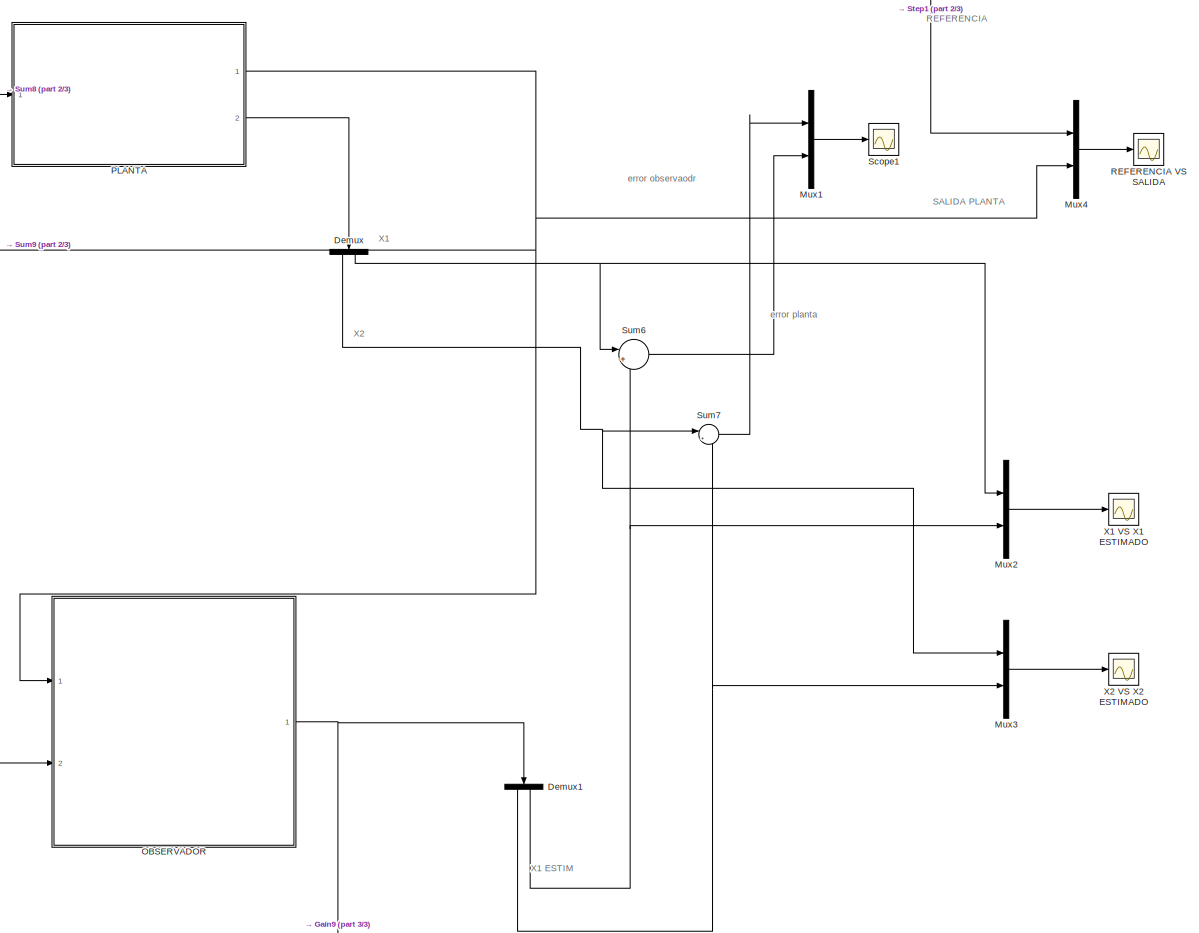
[diagram: root canvas - part 1/3, right side, full height]
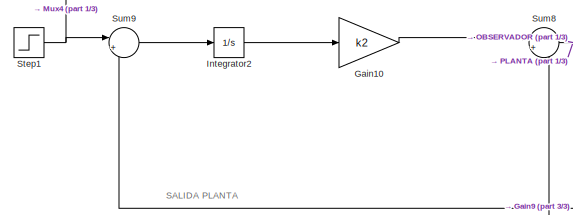
[diagram: root canvas - part 2/3, top left region]
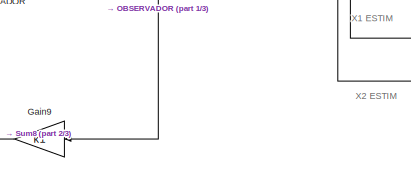
[diagram: root canvas - part 3/3, bottom center region]
MODEL slx_547552ccd16b
KIND model
CONFIG AbsTol = auto
CONFIG FixedStep = 1e-6
CONFIG MaxStep = auto
CONFIG MinStep = auto
CONFIG RelTol = 1e-3
CONFIG SampleTimeConstraint = Unconstrained
CONFIG Solver = ode45
CONFIG SolverMode = Auto
CONFIG SolverName = ode45
CONFIG StartTime = 0.0
CONFIG StopTime = 10
BLOCK [Demux] Demux
  DisplayOption = bar
  Outputs = 2
  Ports = [1, 2]
BLOCK [Demux] Demux1
  DisplayOption = bar
  Outputs = 2
  Ports = [1, 2]
BLOCK [Gain] Gain10
  Gain = k2
  OutDataTypeStr = Inherit: Inherit via internal rule
  ParamDataTypeStr = Inherit: Inherit via internal rule
  SaturateOnIntegerOverflow = off
BLOCK [Gain] Gain9
  Gain = k1
  Multiplication = Matrix(K*u)
  OutDataTypeStr = Inherit: Inherit via internal rule
  ParamDataTypeStr = Inherit: Inherit via internal rule
  SaturateOnIntegerOverflow = off
BLOCK [Integrator] Integrator2
  Ports = [1, 1]
BLOCK [Mux] Mux1
  DisplayOption = bar
  Inputs = 2
  Ports = [2, 1]
BLOCK [Mux] Mux2
  DisplayOption = bar
  Inputs = 2
  Ports = [2, 1]
BLOCK [Mux] Mux3
  DisplayOption = bar
  Inputs = 2
  Ports = [2, 1]
BLOCK [Mux] Mux4
  DisplayOption = bar
  Inputs = 2
  Ports = [2, 1]
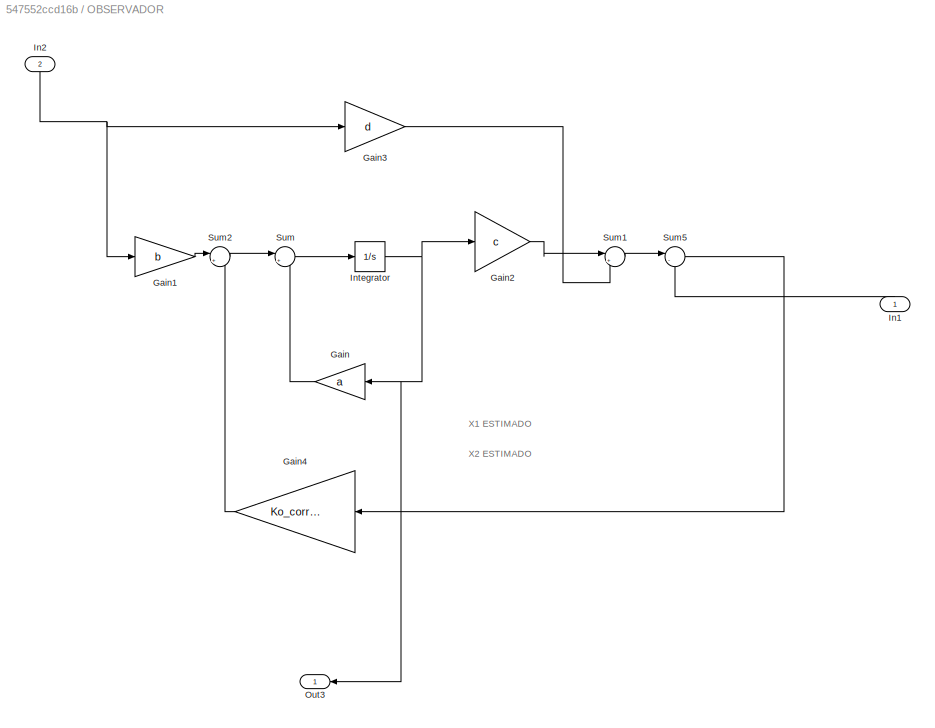
BLOCK [SubSystem] OBSERVADOR
  Ports = [2, 1]
  RequestExecContextInheritance = off
BLOCK [Gain] OBSERVADOR/Gain
  Gain = a
  Multiplication = Matrix(K*u)
  OutDataTypeStr = Inherit: Inherit via internal rule
  ParamDataTypeStr = Inherit: Inherit via internal rule
  SaturateOnIntegerOverflow = off
BLOCK [Gain] OBSERVADOR/Gain1
  Gain = b
  Multiplication = Matrix(K*u)
  OutDataTypeStr = Inherit: Inherit via internal rule
  ParamDataTypeStr = Inherit: Inherit via internal rule
  SaturateOnIntegerOverflow = off
BLOCK [Gain] OBSERVADOR/Gain2
  Gain = c
  Multiplication = Matrix(K*u)
  OutDataTypeStr = Inherit: Inherit via internal rule
  ParamDataTypeStr = Inherit: Inherit via internal rule
  SaturateOnIntegerOverflow = off
BLOCK [Gain] OBSERVADOR/Gain3
  Gain = d
  Multiplication = Matrix(K*u)
  OutDataTypeStr = Inherit: Inherit via internal rule
  ParamDataTypeStr = Inherit: Inherit via internal rule
  SaturateOnIntegerOverflow = off
BLOCK [Gain] OBSERVADOR/Gain4
  Gain = Ko_corr_2
  Multiplication = Matrix(K*u)
  OutDataTypeStr = Inherit: Inherit via internal rule
  ParamDataTypeStr = Inherit: Inherit via internal rule
  SaturateOnIntegerOverflow = off
BLOCK [Inport] OBSERVADOR/In1
  IconDisplay = Port number
BLOCK [Inport] OBSERVADOR/In2
  IconDisplay = Port number
  Port = 2
BLOCK [Integrator] OBSERVADOR/Integrator
  Ports = [1, 1]
BLOCK [Outport] OBSERVADOR/Out3
  IconDisplay = Port number
BLOCK [Sum] OBSERVADOR/Sum
  IconShape = round
  InputSameDT = off
  Inputs = |++
  OutDataTypeStr = Inherit: Inherit via internal rule
  Ports = [2, 1]
  SaturateOnIntegerOverflow = off
BLOCK [Sum] OBSERVADOR/Sum1
  IconShape = round
  InputSameDT = off
  Inputs = |++
  OutDataTypeStr = Inherit: Inherit via internal rule
  Ports = [2, 1]
  SaturateOnIntegerOverflow = off
BLOCK [Sum] OBSERVADOR/Sum2
  IconShape = round
  InputSameDT = off
  Inputs = |++
  OutDataTypeStr = Inherit: Inherit via internal rule
  Ports = [2, 1]
  SaturateOnIntegerOverflow = off
BLOCK [Sum] OBSERVADOR/Sum5
  IconShape = round
  InputSameDT = off
  Inputs = |-+
  OutDataTypeStr = Inherit: Inherit via internal rule
  Ports = [2, 1]
  SaturateOnIntegerOverflow = off
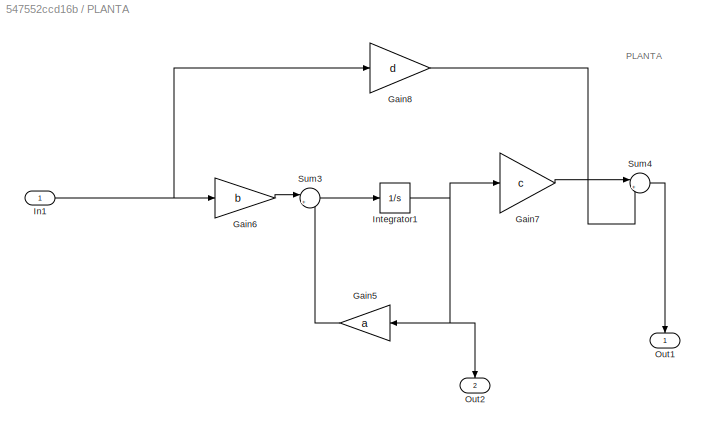
BLOCK [SubSystem] PLANTA
  Ports = [1, 2]
  RequestExecContextInheritance = off
BLOCK [Gain] PLANTA/Gain5
  Gain = a
  Multiplication = Matrix(K*u)
  OutDataTypeStr = Inherit: Inherit via internal rule
  ParamDataTypeStr = Inherit: Inherit via internal rule
  SaturateOnIntegerOverflow = off
BLOCK [Gain] PLANTA/Gain6
  Gain = b
  Multiplication = Matrix(K*u)
  OutDataTypeStr = Inherit: Inherit via internal rule
  ParamDataTypeStr = Inherit: Inherit via internal rule
  SaturateOnIntegerOverflow = off
BLOCK [Gain] PLANTA/Gain7
  Gain = c
  Multiplication = Matrix(K*u)
  OutDataTypeStr = Inherit: Inherit via internal rule
  ParamDataTypeStr = Inherit: Inherit via internal rule
  SaturateOnIntegerOverflow = off
BLOCK [Gain] PLANTA/Gain8
  Gain = d
  Multiplication = Matrix(K*u)
  OutDataTypeStr = Inherit: Inherit via internal rule
  ParamDataTypeStr = Inherit: Inherit via internal rule
  SaturateOnIntegerOverflow = off
BLOCK [Inport] PLANTA/In1
  IconDisplay = Port number
BLOCK [Integrator] PLANTA/Integrator1
  Ports = [1, 1]
BLOCK [Outport] PLANTA/Out1
  IconDisplay = Port number
BLOCK [Outport] PLANTA/Out2
  IconDisplay = Port number
  Port = 2
BLOCK [Sum] PLANTA/Sum3
  IconShape = round
  InputSameDT = off
  Inputs = |++
  OutDataTypeStr = Inherit: Inherit via internal rule
  Ports = [2, 1]
  SaturateOnIntegerOverflow = off
BLOCK [Sum] PLANTA/Sum4
  IconShape = round
  InputSameDT = off
  Inputs = |++
  OutDataTypeStr = Inherit: Inherit via internal rule
  Ports = [2, 1]
  SaturateOnIntegerOverflow = off
BLOCK [Scope] REFERENCIA VS SALIDA
  Floating = off
  NumInputPorts = 1
  Ports = [1]
  SaveName = ScopeData3
BLOCK [Scope] Scope1
  Floating = off
  NumInputPorts = 1
  Ports = [1]
  SaveName = ScopeData1
BLOCK [Step] Step1
  SampleTime = 0
  Time = 0
BLOCK [Sum] Sum6
  IconShape = round
  InputSameDT = off
  Inputs = |+-
  OutDataTypeStr = Inherit: Inherit via internal rule
  Ports = [2, 1]
  SaturateOnIntegerOverflow = off
BLOCK [Sum] Sum7
  IconShape = round
  InputSameDT = off
  Inputs = |+-
  OutDataTypeStr = Inherit: Inherit via internal rule
  Ports = [2, 1]
  SaturateOnIntegerOverflow = off
BLOCK [Sum] Sum8
  IconShape = round
  InputSameDT = off
  Inputs = |+-
  OutDataTypeStr = Inherit: Inherit via internal rule
  Ports = [2, 1]
  SaturateOnIntegerOverflow = off
BLOCK [Sum] Sum9
  IconShape = round
  InputSameDT = off
  Inputs = |+-
  OutDataTypeStr = Inherit: Inherit via internal rule
  Ports = [2, 1]
  SaturateOnIntegerOverflow = off
BLOCK [Scope] X1 VS X1 ESTIMADO
  Floating = off
  LimitDataPoints = off
  NumInputPorts = 1
  Ports = [1]
  ZoomMode = yonly
BLOCK [Scope] X2 VS X2 ESTIMADO
  Floating = off
  NumInputPorts = 1
  Ports = [1]
  SaveName = ScopeData2
ANNOTATION (root): REFERENCIA
ANNOTATION (root): SALIDA PLANTA
ANNOTATION (root): X1
ANNOTATION (root): X1 ESTIM
ANNOTATION (root): X2
ANNOTATION (root): X2 ESTIM
ANNOTATION (root): error observaodr
ANNOTATION (root): error planta
ANNOTATION OBSERVADOR: X1 ESTIMADO
ANNOTATION OBSERVADOR: X2 ESTIMADO
ANNOTATION PLANTA: PLANTA
NET Demux1:1 -> Mux3:2, Sum7:2
NET Demux1:2 -> Mux2:2, Sum6:2
NET Demux:1 -> Mux3:1, Sum7:1
NET Demux:2 -> Mux2:1, Sum6:1
LINE Gain10:1 -> Sum8:1
LINE Gain9:1 -> Sum8:2
LINE Integrator2:1 -> Gain10:1
LINE Mux1:1 -> Scope1:1
LINE Mux2:1 -> X1 VS X1 ESTIMADO:1
LINE Mux3:1 -> X2 VS X2 ESTIMADO:1
LINE Mux4:1 -> REFERENCIA VS SALIDA:1
LINE OBSERVADOR/Gain1:1 -> OBSERVADOR/Sum2:1
LINE OBSERVADOR/Gain2:1 -> OBSERVADOR/Sum1:1
LINE OBSERVADOR/Gain3:1 -> OBSERVADOR/Sum1:2
LINE OBSERVADOR/Gain4:1 -> OBSERVADOR/Sum2:2
LINE OBSERVADOR/Gain:1 -> OBSERVADOR/Sum:2
LINE OBSERVADOR/In1:1 -> OBSERVADOR/Sum5:2
NET OBSERVADOR/In2:1 -> OBSERVADOR/Gain1:1, OBSERVADOR/Gain3:1
NET OBSERVADOR/Integrator:1 -> OBSERVADOR/Gain2:1, OBSERVADOR/Gain:1, OBSERVADOR/Out3:1
LINE OBSERVADOR/Sum1:1 -> OBSERVADOR/Sum5:1
LINE OBSERVADOR/Sum2:1 -> OBSERVADOR/Sum:1
LINE OBSERVADOR/Sum5:1 -> OBSERVADOR/Gain4:1
LINE OBSERVADOR/Sum:1 -> OBSERVADOR/Integrator:1
NET OBSERVADOR:1 -> Demux1:1, Gain9:1
LINE PLANTA/Gain5:1 -> PLANTA/Sum3:2
LINE PLANTA/Gain6:1 -> PLANTA/Sum3:1
LINE PLANTA/Gain7:1 -> PLANTA/Sum4:1
LINE PLANTA/Gain8:1 -> PLANTA/Sum4:2
NET PLANTA/In1:1 -> PLANTA/Gain6:1, PLANTA/Gain8:1
NET PLANTA/Integrator1:1 -> PLANTA/Gain5:1, PLANTA/Gain7:1, PLANTA/Out2:1
LINE PLANTA/Sum3:1 -> PLANTA/Integrator1:1
LINE PLANTA/Sum4:1 -> PLANTA/Out1:1
NET PLANTA:1 -> Mux4:2, OBSERVADOR:1, Sum9:2
LINE PLANTA:2 -> Demux:1
NET Step1:1 -> Mux4:1, Sum9:1
LINE Sum6:1 -> Mux1:2
LINE Sum7:1 -> Mux1:1
NET Sum8:1 -> OBSERVADOR:2, PLANTA:1
LINE Sum9:1 -> Integrator2:1
note: NET lines group one-source signal fan-out (src -> all destinations, sorted); 1:1 wires keep LINE
